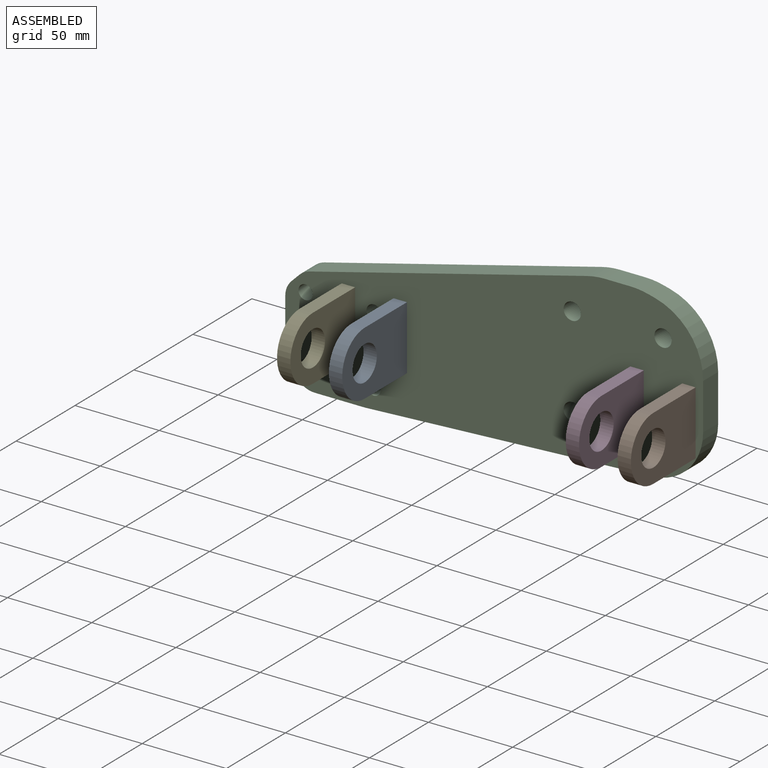
[diagram: assembled view]
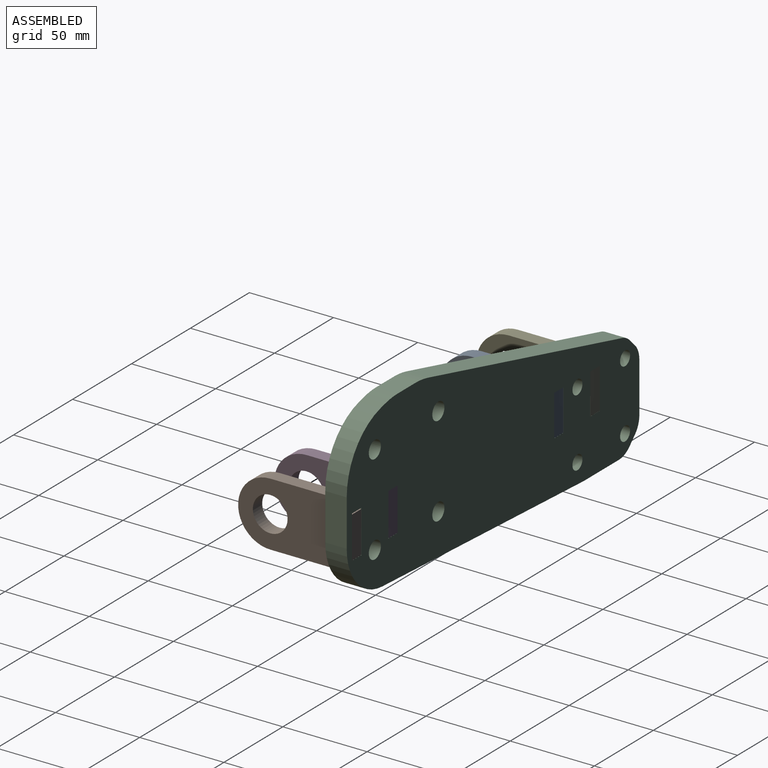
[diagram: assembled view, second angle]
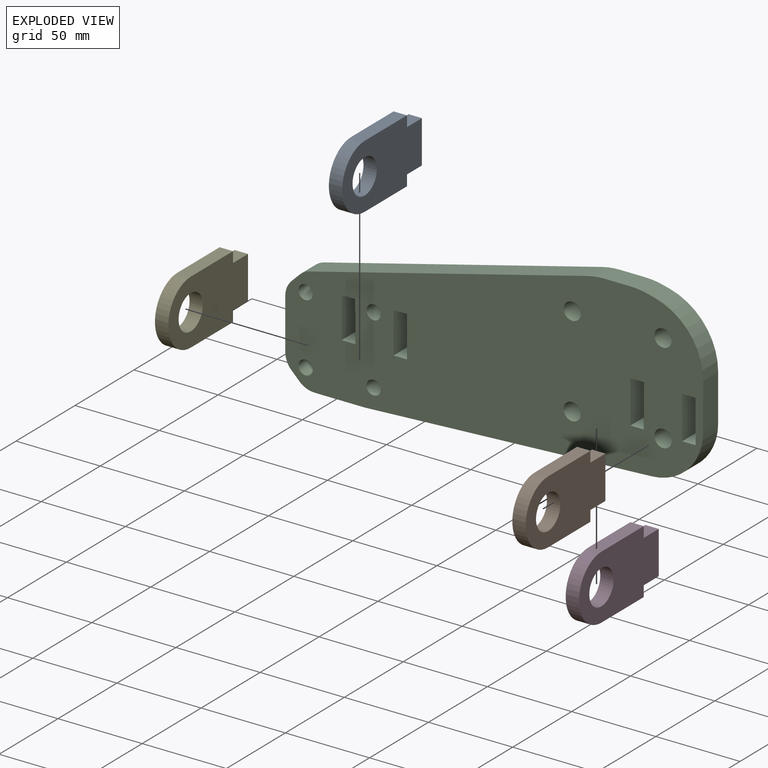
[diagram: exploded view]
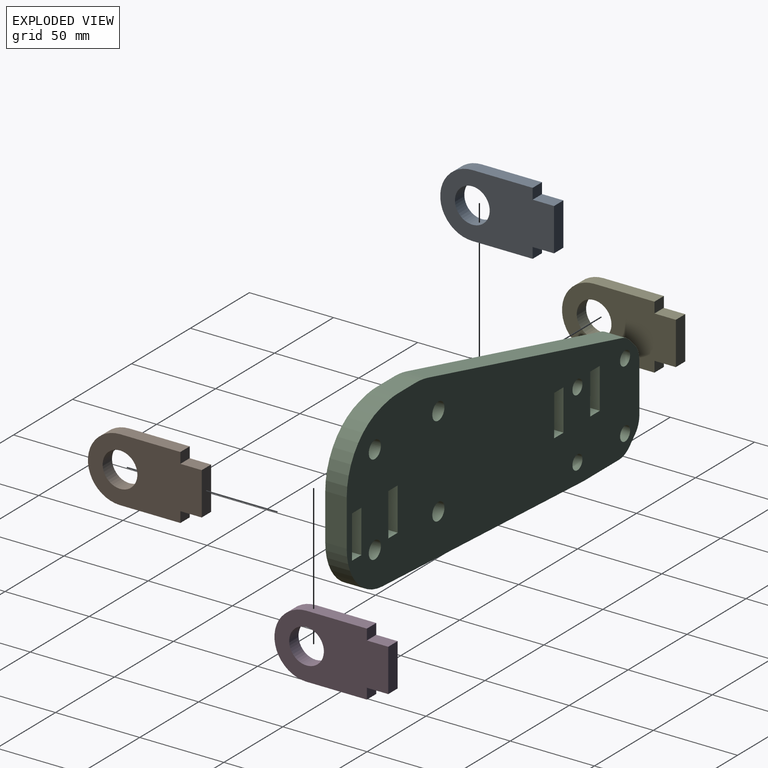
[diagram: exploded view, second angle]
ASSEMBLY  parts=5 mates=4
PART A: 11 faces, bbox 7.9x67.6x38.1 mm
  f0: plane 12.7x7.94mm, normal (0,0,-1), area 100.8mm2, adj f5,f6,f8,f10
  f1: plane 12.7x7.94mm, normal (0,0,1), area 100.8mm2, adj f5,f6,f8,f9
  f2: plane 35.84x7.94mm, normal (0,0,1), area 284.5mm2, adj f3,f5,f6,f9
  f3: cylinder r=19.05mm len=38.1mm, axis (-1,0,0), area 475mm2, adj f2,f4,f5,f6
  f4: plane 35.84x7.94mm, normal (0,0,-1), area 284.5mm2, adj f3,f5,f6,f10
  f5: plane 67.59x38.1mm, normal (1,0,0), area 1924.2mm2, adj f0,f1,f2,f3,f4,f7,f8,f9
  f6: plane 67.59x38.1mm, normal (-1,0,0), area 1924.2mm2, adj f0,f1,f2,f3,f4,f7,f8,f9
  f7: cylinder r=10.31mm len=20.63mm, axis (-1,0,0), area 514.3mm2, adj f5,f6
  f8: plane 25.4x7.94mm, normal (0,1,0), area 201.6mm2, adj f0,f1,f5,f6
  f9: plane 7.94x6.35mm, normal (0,1,0), area 50.4mm2, adj f1,f2,f5,f6
  f10: plane 7.94x6.35mm, normal (0,1,0), area 50.4mm2, adj f0,f4,f5,f6
PART B: same geometry as A
PART C: 47 faces, bbox 248.2x12.7x107.2 mm
  f0: plane 248.19x107.23mm, normal (0,-1,0), area 19266.9mm2, adj f2,f3,f4,f5,f6,f7,f8,f9
  f1: plane 248.19x107.23mm, normal (0,1,0), area 19266.9mm2, adj f2,f3,f4,f5,f6,f7,f8,f9
  f2: plane 12.74x3.68mm, normal (0.25,0,0.97), area 48.3mm2, adj f0,f1,f4,f46
  f3: plane 170.81x12.74mm, normal (0.05,0,-1), area 2179.3mm2, adj f0,f1,f15,f45
  f4: cylinder r=43.18mm len=12.74mm, axis (0,1,0), area 138.8mm2, adj f0,f1,f2,f5
  f5: plane 15.24x12.74mm, normal (0,0,1), area 194.2mm2, adj f0,f1,f4,f6
  f6: cylinder r=43.24mm len=12.74mm, axis (0,1,0), area 137.4mm2, adj f0,f1,f5,f7
  f7: plane 164.87x41.67mm, normal (-0.25,0,0.97), area 2166.8mm2, adj f0,f1,f6,f8
  f8: cylinder r=12.7mm len=12.74mm, axis (0,1,0), area 87mm2, adj f0,f1,f7,f9
  f9: plane 12.74x4.66mm, normal (-0.71,0,0.71), area 83.9mm2, adj f0,f1,f8,f10
  f10: cylinder r=12.7mm len=12.74mm, axis (0,1,0), area 127.1mm2, adj f0,f1,f9,f11
  f11: plane 29.89x12.74mm, normal (-1,0,0), area 380.9mm2, adj f0,f1,f10,f12
  f12: cylinder r=12.7mm len=12.74mm, axis (0,1,0), area 127.1mm2, adj f0,f1,f11,f13
  f13: plane 12.74x4.66mm, normal (-0.71,0,-0.71), area 83.9mm2, adj f0,f1,f12,f14
  f14: cylinder r=12.7mm len=12.74mm, axis (0,1,0), area 127.1mm2, adj f0,f1,f13,f15
  f15: plane 29.89x12.74mm, normal (0,0,-1), area 380.9mm2, adj f0,f1,f3,f14
  f16: cylinder r=4.24mm len=12.74mm, axis (0,1,0), area 339.6mm2, adj f0,f1
  f17: cylinder r=4.24mm len=12.74mm, axis (0,1,0), area 339.6mm2, adj f0,f1
  f18: cylinder r=5.13mm len=12.74mm, axis (0,1,0), area 410.8mm2, adj f0,f1
  f19: cylinder r=5.13mm len=12.74mm, axis (0,1,0), area 410.8mm2, adj f0,f1
  f20: cylinder r=5.13mm len=12.74mm, axis (0,1,0), area 410.8mm2, adj f0,f1
  f21: cylinder r=5.13mm len=12.74mm, axis (0,1,0), area 410.8mm2, adj f0,f1
  f22: cylinder r=4.24mm len=12.74mm, axis (0,1,0), area 339.6mm2, adj f0,f1
  f23: cylinder r=4.24mm len=12.74mm, axis (0,1,0), area 339.6mm2, adj f0,f1
  f24: plane 25.4x12.74mm, normal (-1,0,0), area 323.6mm2, adj f0,f1,f25,f27
  f25: plane 12.74x7.94mm, normal (0,0,-1), area 101.1mm2, adj f0,f1,f24,f26
  f26: plane 25.4x12.74mm, normal (1,0,0), area 323.6mm2, adj f0,f1,f25,f27
  f27: plane 12.74x7.94mm, normal (0,0,1), area 101.1mm2, adj f0,f1,f24,f26
  f28: plane 12.74x7.94mm, normal (0,0,-1), area 101.1mm2, adj f0,f1,f29,f33
  f29: plane 25.4x12.74mm, normal (1,0,0), area 323.6mm2, adj f0,f1,f28,f30
  f30: plane 12.74x7.94mm, normal (0,0,1), area 101.1mm2, adj f0,f1,f29,f31
  f31: plane 12.74x12.27mm, normal (-1,0,0), area 156.3mm2, adj f0,f1,f30,f32
  f32: cylinder r=11.43mm len=12.74mm, axis (0,-1,0), area 5.5mm2, adj f0,f1,f31,f33
  f33: plane 12.74x12.7mm, normal (-1,0,0), area 161.8mm2, adj f0,f1,f28,f32
  f34: plane 12.74x7.94mm, normal (0.01,0,-1), area 101.1mm2, adj f0,f1,f35,f39
  f35: plane 12.74x8.37mm, normal (1,0,0), area 106.6mm2, adj f0,f1,f34,f36
  f36: cylinder r=11.43mm len=12.74mm, axis (0,-1,0), area 5.5mm2, adj f0,f1,f35,f37
  f37: plane 15.51x12.74mm, normal (1,0,0), area 197.7mm2, adj f0,f1,f36,f38
  f38: plane 12.74x7.94mm, normal (0,0,1), area 101.1mm2, adj f0,f1,f37,f39
  f39: plane 24.38x12.74mm, normal (-1,0,0), area 310.6mm2, adj f0,f1,f34,f38
  f40: plane 24.14x12.74mm, normal (-1,0,-0.01), area 307.6mm2, adj f0,f1,f41,f43
  f41: plane 12.74x7.94mm, normal (0.01,0,-1), area 101.1mm2, adj f0,f1,f40,f42
  f42: plane 24.08x12.74mm, normal (1,0,0), area 306.8mm2, adj f0,f1,f41,f43
  f43: plane 12.74x8.12mm, normal (0,0,1), area 103.5mm2, adj f0,f1,f40,f42
  f44: plane 27.6x12.74mm, normal (1,0,0), area 351.7mm2, adj f0,f1,f45,f46
  f45: cylinder r=31.75mm len=31.71mm, axis (0,-1,0), area 614.9mm2, adj f0,f1,f3,f44
  f46: cylinder r=38.1mm len=36.93mm, axis (0,1,0), area 641.8mm2, adj f0,f1,f2,f44
PART D: same geometry as A
PART E: same geometry as A
PLACE A t=(59.75,167.51,-82.15)mm fixed
PLACE B t=(231.17,167.51,-82.02)mm fixed
PLACE C t=(-513.18,71.22,-56.36)mm fixed
PLACE D t=(200.37,167.51,-81.13)mm fixed
PLACE E t=(28.95,167.51,-82.39)mm fixed
MATE planar E.f9 <-> C.f0  axis (0,1,0) through (36.89,70.72,-26.62)mm
MATE planar D.f9 <-> C.f0  axis (0,1,0) through (208.31,70.72,-25.36)mm
MATE planar A.f9 <-> C.f0  axis (0,1,0) through (67.69,70.72,-26.39)mm
MATE planar B.f9 <-> C.f0  axis (0,1,0) through (239.11,70.72,-26.25)mm
